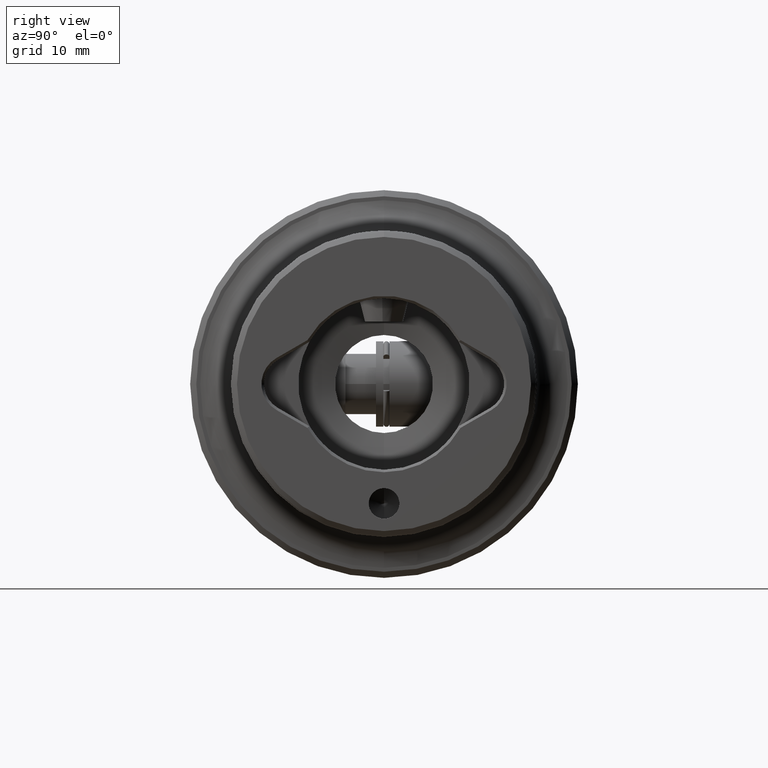
[diagram: clean part render]
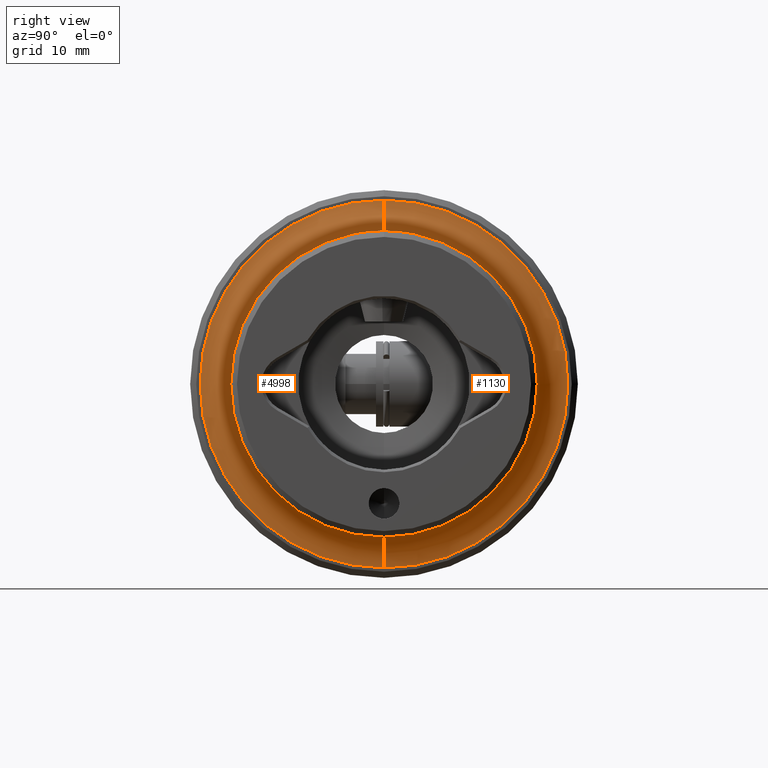
[diagram: same view with one multi-face feature highlighted, each face labeled with its STEP entity id]
A machine part, right view. The highlighted faces form ONE feature: a constant-radius fillet chain: 2 tangent blend faces with common blend radius 5 mm. The faces share edges in the B-rep.
Their STEP definitions:
[1] entity #1130 (Torus):
#51 = CARTESIAN_POINT ( 'NONE',  ( 52.00000000000000700, 0.0000000000000000000, 30.00000000000000400 ) ) ;
#148 = CARTESIAN_POINT ( 'NONE',  ( 57.00000000000000000, 3.061616997868383000E-015, -25.00000000000000000 ) ) ;
#159 = FACE_OUTER_BOUND ( 'NONE', #3730, .T. ) ;
#344 = CIRCLE ( 'NONE', #4473, 5.000000000000000900 ) ;
#356 = ORIENTED_EDGE ( 'NONE', *, *, #829, .F. ) ;
#430 = CARTESIAN_POINT ( 'NONE',  ( 57.00000000000000000, 0.0000000000000000000, 25.00000000000000000 ) ) ;
#507 = VERTEX_POINT ( 'NONE', #430 ) ;
#624 = DIRECTION ( 'NONE',  ( -0.0000000000000000000, 1.000000000000000000, 1.224646799147353200E-016 ) ) ;
#807 = DIRECTION ( 'NONE',  ( 0.0000000000000000000, -1.000000000000000000, 0.0000000000000000000 ) ) ;
#829 = EDGE_CURVE ( 'NONE', #1600, #4259, #344, .T. ) ;
#1130 = ADVANCED_FACE ( 'NONE', ( #159 ), #1220, .F. ) ;
#1220 = TOROIDAL_SURFACE ( 'NONE', #4674, 30.00000000000000400, 5.000000000000000000 ) ;
#1277 = CARTESIAN_POINT ( 'NONE',  ( 57.00000000000000000, 0.0000000000000000000, 0.0000000000000000000 ) ) ;
#1600 = VERTEX_POINT ( 'NONE', #2754 ) ;
#1651 = EDGE_CURVE ( 'NONE', #4259, #507, #4558, .T. ) ;
#1699 = CARTESIAN_POINT ( 'NONE',  ( 52.00000000000000700, 0.0000000000000000000, 0.0000000000000000000 ) ) ;
#1994 = DIRECTION ( 'NONE',  ( 1.000000000000000000, 0.0000000000000000000, 0.0000000000000000000 ) ) ;
#2086 = DIRECTION ( 'NONE',  ( 0.0000000000000000000, 0.0000000000000000000, 1.000000000000000000 ) ) ;
#2121 = ORIENTED_EDGE ( 'NONE', *, *, #4106, .T. ) ;
#2317 = AXIS2_PLACEMENT_3D ( 'NONE', #1699, #4515, #2086 ) ;
#2350 = CIRCLE ( 'NONE', #3831, 5.000000000000000900 ) ;
#2754 = CARTESIAN_POINT ( 'NONE',  ( 52.00000000000000700, 3.673940397442059200E-015, -30.00000000000000400 ) ) ;
#3017 = CARTESIAN_POINT ( 'NONE',  ( 57.00000000000000000, 3.673940397442060000E-015, -30.00000000000000400 ) ) ;
#3201 = CARTESIAN_POINT ( 'NONE',  ( 57.00000000000000000, 0.0000000000000000000, 30.00000000000000400 ) ) ;
#3238 = CIRCLE ( 'NONE', #2317, 30.00000000000000400 ) ;
#3426 = DIRECTION ( 'NONE',  ( 0.0000000000000000000, -1.224646799147353500E-016, 1.000000000000000000 ) ) ;
#3614 = DIRECTION ( 'NONE',  ( 0.0000000000000000000, 0.0000000000000000000, -1.000000000000000000 ) ) ;
#3640 = AXIS2_PLACEMENT_3D ( 'NONE', #4408, #1994, #4853 ) ;
#3730 = EDGE_LOOP ( 'NONE', ( #356, #5022, #2121, #5150 ) ) ;
#3831 = AXIS2_PLACEMENT_3D ( 'NONE', #3201, #807, #3614 ) ;
#4083 = DIRECTION ( 'NONE',  ( -1.000000000000000000, -0.0000000000000000000, -0.0000000000000000000 ) ) ;
#4106 = EDGE_CURVE ( 'NONE', #4577, #507, #2350, .T. ) ;
#4259 = VERTEX_POINT ( 'NONE', #148 ) ;
#4408 = CARTESIAN_POINT ( 'NONE',  ( 57.00000000000000000, 0.0000000000000000000, 0.0000000000000000000 ) ) ;
#4473 = AXIS2_PLACEMENT_3D ( 'NONE', #3017, #624, #3426 ) ;
#4489 = DIRECTION ( 'NONE',  ( 0.0000000000000000000, 0.0000000000000000000, 1.000000000000000000 ) ) ;
#4515 = DIRECTION ( 'NONE',  ( -1.000000000000000000, -0.0000000000000000000, -0.0000000000000000000 ) ) ;
#4558 = CIRCLE ( 'NONE', #3640, 25.00000000000000000 ) ;
#4577 = VERTEX_POINT ( 'NONE', #51 ) ;
#4674 = AXIS2_PLACEMENT_3D ( 'NONE', #1277, #4083, #4489 ) ;
#4853 = DIRECTION ( 'NONE',  ( 0.0000000000000000000, 0.0000000000000000000, 1.000000000000000000 ) ) ;
#5022 = ORIENTED_EDGE ( 'NONE', *, *, #5077, .F. ) ;
#5077 = EDGE_CURVE ( 'NONE', #4577, #1600, #3238, .T. ) ;
#5150 = ORIENTED_EDGE ( 'NONE', *, *, #1651, .F. ) ;
[2] entity #4998 (Torus):
#22 = DIRECTION ( 'NONE',  ( 0.0000000000000000000, 0.0000000000000000000, 1.000000000000000000 ) ) ;
#51 = CARTESIAN_POINT ( 'NONE',  ( 52.00000000000000700, 0.0000000000000000000, 30.00000000000000400 ) ) ;
#148 = CARTESIAN_POINT ( 'NONE',  ( 57.00000000000000000, 3.061616997868383000E-015, -25.00000000000000000 ) ) ;
#344 = CIRCLE ( 'NONE', #4473, 5.000000000000000900 ) ;
#430 = CARTESIAN_POINT ( 'NONE',  ( 57.00000000000000000, 0.0000000000000000000, 25.00000000000000000 ) ) ;
#507 = VERTEX_POINT ( 'NONE', #430 ) ;
#624 = DIRECTION ( 'NONE',  ( -0.0000000000000000000, 1.000000000000000000, 1.224646799147353200E-016 ) ) ;
#724 = DIRECTION ( 'NONE',  ( 1.000000000000000000, 0.0000000000000000000, 0.0000000000000000000 ) ) ;
#807 = DIRECTION ( 'NONE',  ( 0.0000000000000000000, -1.000000000000000000, 0.0000000000000000000 ) ) ;
#829 = EDGE_CURVE ( 'NONE', #1600, #4259, #344, .T. ) ;
#1600 = VERTEX_POINT ( 'NONE', #2754 ) ;
#1613 = TOROIDAL_SURFACE ( 'NONE', #5169, 30.00000000000000400, 5.000000000000000000 ) ;
#1925 = AXIS2_PLACEMENT_3D ( 'NONE', #3120, #724, #3526 ) ;
#2018 = CARTESIAN_POINT ( 'NONE',  ( 57.00000000000000000, 0.0000000000000000000, 0.0000000000000000000 ) ) ;
#2350 = CIRCLE ( 'NONE', #3831, 5.000000000000000900 ) ;
#2413 = DIRECTION ( 'NONE',  ( -1.000000000000000000, -0.0000000000000000000, -0.0000000000000000000 ) ) ;
#2416 = ORIENTED_EDGE ( 'NONE', *, *, #4106, .F. ) ;
#2495 = ORIENTED_EDGE ( 'NONE', *, *, #3906, .F. ) ;
#2518 = ORIENTED_EDGE ( 'NONE', *, *, #829, .T. ) ;
#2694 = EDGE_LOOP ( 'NONE', ( #4196, #2518, #2495, #2416 ) ) ;
#2754 = CARTESIAN_POINT ( 'NONE',  ( 52.00000000000000700, 3.673940397442059200E-015, -30.00000000000000400 ) ) ;
#2829 = DIRECTION ( 'NONE',  ( 0.0000000000000000000, 0.0000000000000000000, 1.000000000000000000 ) ) ;
#2887 = CIRCLE ( 'NONE', #1925, 25.00000000000000000 ) ;
#3017 = CARTESIAN_POINT ( 'NONE',  ( 57.00000000000000000, 3.673940397442060000E-015, -30.00000000000000400 ) ) ;
#3120 = CARTESIAN_POINT ( 'NONE',  ( 57.00000000000000000, 0.0000000000000000000, 0.0000000000000000000 ) ) ;
#3201 = CARTESIAN_POINT ( 'NONE',  ( 57.00000000000000000, 0.0000000000000000000, 30.00000000000000400 ) ) ;
#3426 = DIRECTION ( 'NONE',  ( 0.0000000000000000000, -1.224646799147353500E-016, 1.000000000000000000 ) ) ;
#3526 = DIRECTION ( 'NONE',  ( 0.0000000000000000000, 0.0000000000000000000, 1.000000000000000000 ) ) ;
#3614 = DIRECTION ( 'NONE',  ( 0.0000000000000000000, 0.0000000000000000000, -1.000000000000000000 ) ) ;
#3831 = AXIS2_PLACEMENT_3D ( 'NONE', #3201, #807, #3614 ) ;
#3881 = FACE_OUTER_BOUND ( 'NONE', #2694, .T. ) ;
#3906 = EDGE_CURVE ( 'NONE', #507, #4259, #2887, .T. ) ;
#4106 = EDGE_CURVE ( 'NONE', #4577, #507, #2350, .T. ) ;
#4196 = ORIENTED_EDGE ( 'NONE', *, *, #4505, .F. ) ;
#4259 = VERTEX_POINT ( 'NONE', #148 ) ;
#4439 = DIRECTION ( 'NONE',  ( -1.000000000000000000, -0.0000000000000000000, -0.0000000000000000000 ) ) ;
#4473 = AXIS2_PLACEMENT_3D ( 'NONE', #3017, #624, #3426 ) ;
#4505 = EDGE_CURVE ( 'NONE', #1600, #4577, #5159, .T. ) ;
#4577 = VERTEX_POINT ( 'NONE', #51 ) ;
#4824 = AXIS2_PLACEMENT_3D ( 'NONE', #4862, #2413, #22 ) ;
#4862 = CARTESIAN_POINT ( 'NONE',  ( 52.00000000000000700, 0.0000000000000000000, 0.0000000000000000000 ) ) ;
#4998 = ADVANCED_FACE ( 'NONE', ( #3881 ), #1613, .F. ) ;
#5159 = CIRCLE ( 'NONE', #4824, 30.00000000000000400 ) ;
#5169 = AXIS2_PLACEMENT_3D ( 'NONE', #2018, #4439, #2829 ) ;